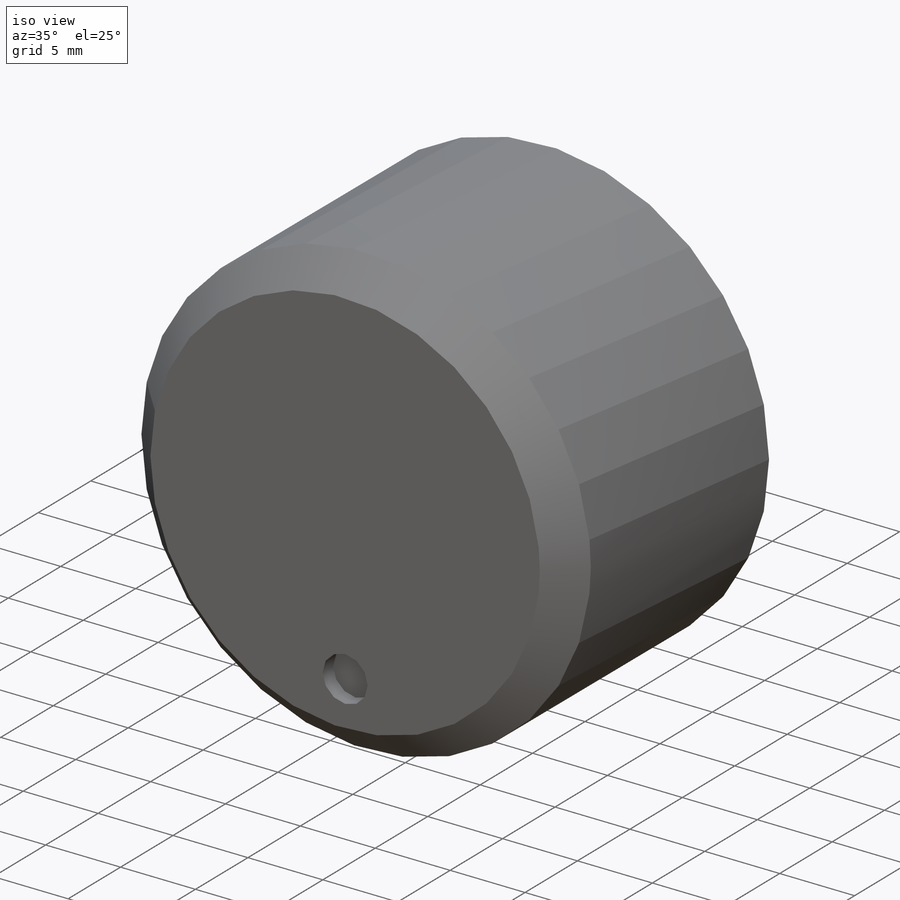
[diagram: iso view]
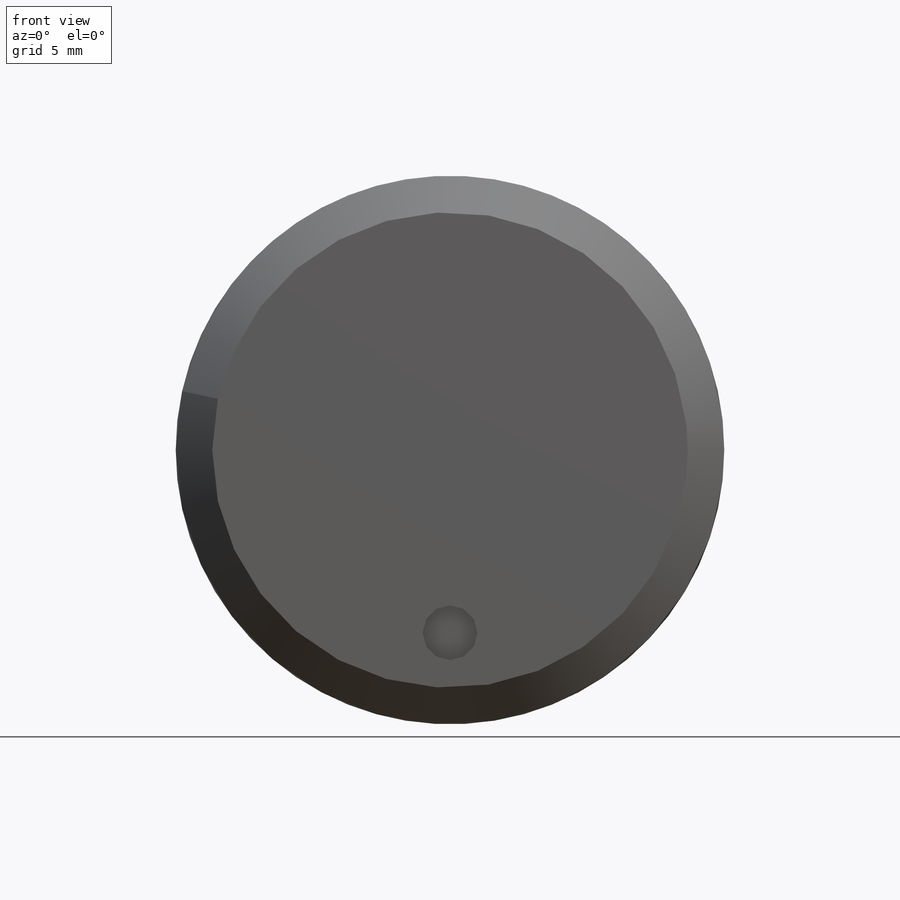
[diagram: front view]
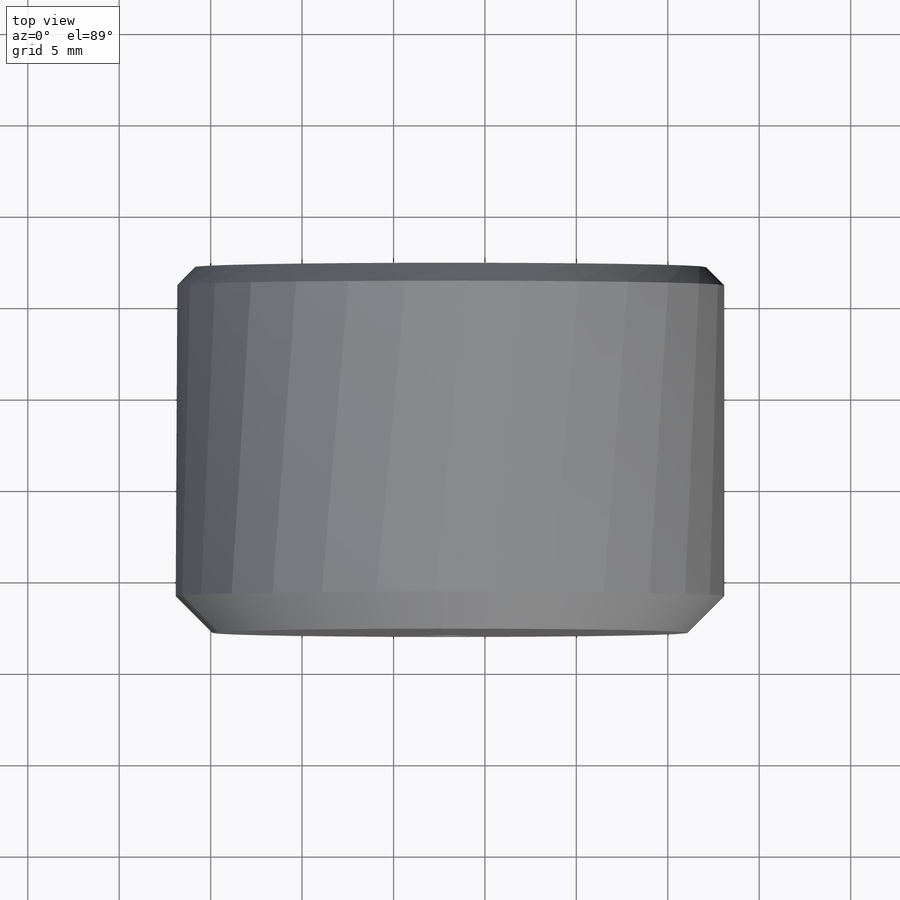
[diagram: top view]
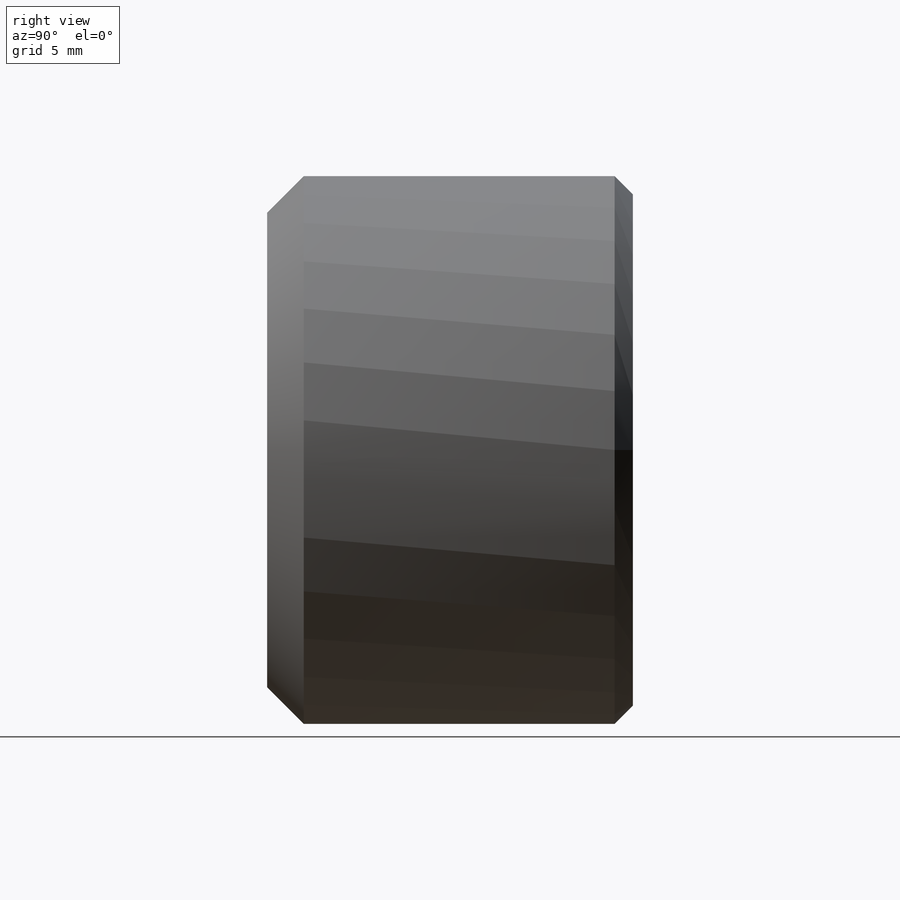
[diagram: right view]
SOLIDWORKS PART (.sldprt)
format: sldprt  version: not decoded by parser v0  size: 461,824 bytes
history: native  units: mm
features: sketch x13, cut_extrude x8, chamfer x5, extrude x3, material x1, plane x1, fillet x1, hole x1 (+13 scaffold rows collapsed)
feature tree (46):
  scaffold x13  (default folders/planes/origin — collapsed)
  material  "Material <not specified>"
  sketch  "Sketch1"  dims[c1.D1=9.0mm c1.D2=50.0mm c1.D3=8.0mm c1.D4=8.0mm c2.D3=8.0mm c2.D4=8.0mm]
  extrude  "Boss-Extrude1"  Depth=10mm
  plane  "Plane1"  Offset=3mm
  sketch  "Sketch2"  dims[c1.D1=3.2mm c1.D3=30.0mm c1.D2=4.6mm c2.D3=~4.552634mm c2.D2=4.7mm]
  extrude  "Boss-Extrude2"  Depth=20mm
  cut_extrude  "Cut-Extrude1"  [1 undecoded]
  sketch  "Sketch2<3>"  dims[D1=11.0mm]
  chamfer  "Chamfer1"  Distance=2mm Angle=45deg
  sketch  "Sketch5"  dims[D1=3.0mm D2=10.0mm]
  cut_extrude  "Cut-Extrude2"  Depth=1mm
  chamfer  "Chamfer2"  Distance=1mm Angle=45deg
  sketch  "Sketch6"  dims[D1=0.5mm D2=1.5mm]
  cut_extrude  "Cut-Extrude3"  Depth=15.5mm
  fillet  "Fillet1"  Radius=1mm
  sketch  "Sketch7"
  cut_extrude  "Cut-Extrude4"  Depth=1mm
  sketch  "Sketch8"  dims[D1=0.5mm]
  extrude  "Boss-Extrude3"  Depth=5mm
  hole  "CBORE for #4 Binding Head Machine Screw1"  Diameter=3.2639mm Depth=29.438025mm
  sketch  "Sketch10"
  sketch  "Sketch9"  dims[hole-wizard template sketch: 42 standard entries collapsed; hole parameters kept: c12.Thru Hole Depth=~29.438025mm c12.C'Bore Dia.=~6.74624mm c12.C'Bore Depth=~7.727188mm]
  sketch  "Sketch11"  dims[D1=9.5mm D2=11.5mm D3=14.0mm]
  cut_extrude  "Cut-Extrude5"  [1 undecoded]
  chamfer  "Chamfer4"  Distance=1mm Angle=45deg
  sketch  "Sketch12"  dims[D2=3.0mm D1=9.0mm]
  cut_extrude  "Cut-Extrude6"  Depth=1.5mm
  chamfer  "Chamfer6"  Distance=1mm Angle=45deg
  sketch  "Sketch13"
  cut_extrude  "Cut-Extrude7"  Depth=3mm
  chamfer  "Chamfer7"  Distance=0.5mm Angle=45deg
  sketch  "Sketch14"  dims[D1=1.0mm]
  cut_extrude  "Cut-Extrude8"  Depth=7mm
decode coverage: 26 of 31 modeling features carry decoded parameters
note: ~ marks probable driven/reference dimensions
note: 2 parameter values undecoded
note: suppression state not decoded; provenance and decode notes live in map.json
